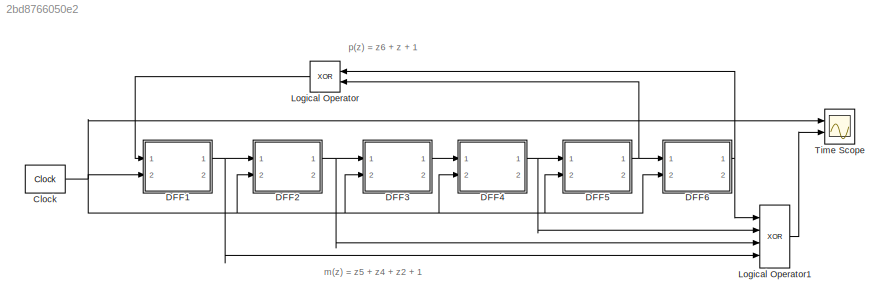
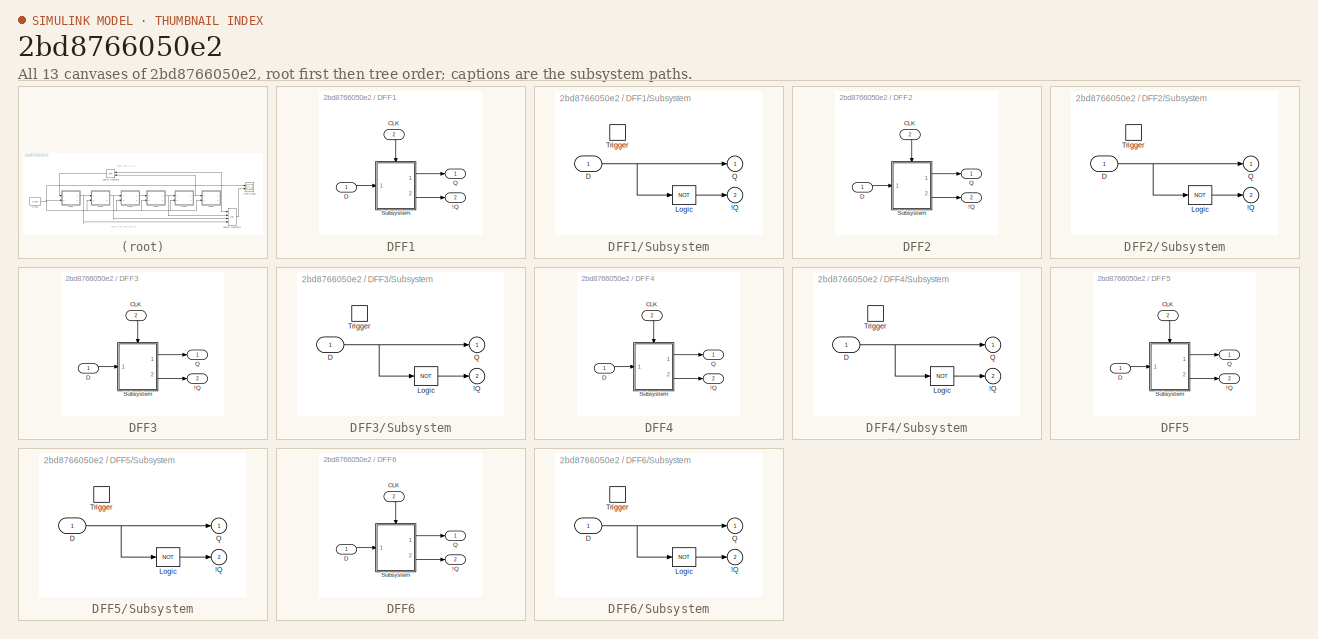
[diagram: thumbnail index - all 13 canvases of the model, root first then tree order]
MODEL slx_2bd8766050e2
KIND model
CONFIG AbsTol = auto
CONFIG EnableMultiTasking = off
CONFIG FixedStep = 1
CONFIG MaxStep = 1
CONFIG MinStep = auto
CONFIG RelTol = 1e-3
CONFIG SampleTimeConstraint = Unconstrained
CONFIG Solver = FixedStepAuto
CONFIG SolverName = FixedStepAuto
CONFIG StartTime = 0.0
CONFIG StopTime = 100
BLOCK [Reference] Clock  REF=simulink_extras/Flip Flops/Clock
  Ports = [0, 1]
  SourceBlock = simulink_extras/Flip Flops/Clock
  SourceProductBaseCode = SL
  SourceProductName = Simulink
  SourceType = Digital clock
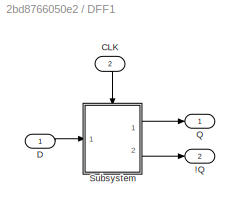
BLOCK [SubSystem] DFF1
  Ports = [2, 2]
  RequestExecContextInheritance = off
BLOCK [Outport] DFF1/!Q
  IconDisplay = Port number
  InitialOutput = 1
  Port = 2
  VectorParamsAs1DForOutWhenUnconnected = off
BLOCK [Inport] DFF1/CLK
  IconDisplay = Port number
  Port = 2
BLOCK [Inport] DFF1/D
  IconDisplay = Port number
BLOCK [Outport] DFF1/Q
  IconDisplay = Port number
  InitialOutput = 0
  VectorParamsAs1DForOutWhenUnconnected = off
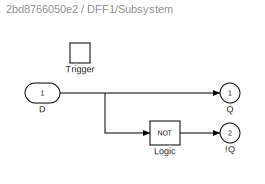
BLOCK [SubSystem] DFF1/Subsystem
  Ports = [1, 2, 0, 1]
  RequestExecContextInheritance = off
BLOCK [Outport] DFF1/Subsystem/!Q
  IconDisplay = Port number
  InitialOutput = intstate < 1
  OutputWhenDisabled = reset
  Port = 2
  VectorParamsAs1DForOutWhenUnconnected = off
BLOCK [Inport] DFF1/Subsystem/D
  IconDisplay = Port number
  LatchByDelayingOutsideSignal = on
BLOCK [Logic] DFF1/Subsystem/Logic
  Inputs = 1
  Operator = NOT
  Ports = [1, 1]
BLOCK [Outport] DFF1/Subsystem/Q
  IconDisplay = Port number
  InitialOutput = intstate > 0
  OutputWhenDisabled = reset
  VectorParamsAs1DForOutWhenUnconnected = off
BLOCK [TriggerPort] DFF1/Subsystem/Trigger
  Ports = []
  StatesWhenEnabling = reset
  VariantControl = Variant
BLOCK [SubSystem] DFF2
  Ports = [2, 2]
  RequestExecContextInheritance = off
BLOCK [Outport] DFF2/!Q
  IconDisplay = Port number
  InitialOutput = 1
  Port = 2
  VectorParamsAs1DForOutWhenUnconnected = off
BLOCK [Inport] DFF2/CLK
  IconDisplay = Port number
  Port = 2
BLOCK [Inport] DFF2/D
  IconDisplay = Port number
BLOCK [Outport] DFF2/Q
  IconDisplay = Port number
  InitialOutput = 0
  VectorParamsAs1DForOutWhenUnconnected = off
BLOCK [SubSystem] DFF2/Subsystem
  Ports = [1, 2, 0, 1]
  RequestExecContextInheritance = off
BLOCK [Outport] DFF2/Subsystem/!Q
  IconDisplay = Port number
  InitialOutput = intstate < 1
  OutputWhenDisabled = reset
  Port = 2
  VectorParamsAs1DForOutWhenUnconnected = off
BLOCK [Inport] DFF2/Subsystem/D
  IconDisplay = Port number
  LatchByDelayingOutsideSignal = on
BLOCK [Logic] DFF2/Subsystem/Logic
  Inputs = 1
  Operator = NOT
  Ports = [1, 1]
BLOCK [Outport] DFF2/Subsystem/Q
  IconDisplay = Port number
  InitialOutput = intstate > 0
  OutputWhenDisabled = reset
  VectorParamsAs1DForOutWhenUnconnected = off
BLOCK [TriggerPort] DFF2/Subsystem/Trigger
  Ports = []
  StatesWhenEnabling = reset
  VariantControl = Variant
BLOCK [SubSystem] DFF3
  Ports = [2, 2]
  RequestExecContextInheritance = off
BLOCK [Outport] DFF3/!Q
  IconDisplay = Port number
  InitialOutput = 1
  Port = 2
  VectorParamsAs1DForOutWhenUnconnected = off
BLOCK [Inport] DFF3/CLK
  IconDisplay = Port number
  Port = 2
BLOCK [Inport] DFF3/D
  IconDisplay = Port number
BLOCK [Outport] DFF3/Q
  IconDisplay = Port number
  InitialOutput = 0
  VectorParamsAs1DForOutWhenUnconnected = off
BLOCK [SubSystem] DFF3/Subsystem
  Ports = [1, 2, 0, 1]
  RequestExecContextInheritance = off
BLOCK [Outport] DFF3/Subsystem/!Q
  IconDisplay = Port number
  InitialOutput = intstate < 1
  OutputWhenDisabled = reset
  Port = 2
  VectorParamsAs1DForOutWhenUnconnected = off
BLOCK [Inport] DFF3/Subsystem/D
  IconDisplay = Port number
  LatchByDelayingOutsideSignal = on
BLOCK [Logic] DFF3/Subsystem/Logic
  Inputs = 1
  Operator = NOT
  Ports = [1, 1]
BLOCK [Outport] DFF3/Subsystem/Q
  IconDisplay = Port number
  InitialOutput = intstate > 0
  OutputWhenDisabled = reset
  VectorParamsAs1DForOutWhenUnconnected = off
BLOCK [TriggerPort] DFF3/Subsystem/Trigger
  Ports = []
  StatesWhenEnabling = reset
  VariantControl = Variant
BLOCK [SubSystem] DFF4
  Ports = [2, 2]
  RequestExecContextInheritance = off
BLOCK [Outport] DFF4/!Q
  IconDisplay = Port number
  InitialOutput = 1
  Port = 2
  VectorParamsAs1DForOutWhenUnconnected = off
BLOCK [Inport] DFF4/CLK
  IconDisplay = Port number
  Port = 2
BLOCK [Inport] DFF4/D
  IconDisplay = Port number
BLOCK [Outport] DFF4/Q
  IconDisplay = Port number
  InitialOutput = 0
  VectorParamsAs1DForOutWhenUnconnected = off
BLOCK [SubSystem] DFF4/Subsystem
  Ports = [1, 2, 0, 1]
  RequestExecContextInheritance = off
BLOCK [Outport] DFF4/Subsystem/!Q
  IconDisplay = Port number
  InitialOutput = intstate < 1
  OutputWhenDisabled = reset
  Port = 2
  VectorParamsAs1DForOutWhenUnconnected = off
BLOCK [Inport] DFF4/Subsystem/D
  IconDisplay = Port number
  LatchByDelayingOutsideSignal = on
BLOCK [Logic] DFF4/Subsystem/Logic
  Inputs = 1
  Operator = NOT
  Ports = [1, 1]
BLOCK [Outport] DFF4/Subsystem/Q
  IconDisplay = Port number
  InitialOutput = intstate > 0
  OutputWhenDisabled = reset
  VectorParamsAs1DForOutWhenUnconnected = off
BLOCK [TriggerPort] DFF4/Subsystem/Trigger
  Ports = []
  StatesWhenEnabling = reset
  VariantControl = Variant
BLOCK [SubSystem] DFF5
  Ports = [2, 2]
  RequestExecContextInheritance = off
BLOCK [Outport] DFF5/!Q
  IconDisplay = Port number
  InitialOutput = 1
  Port = 2
  VectorParamsAs1DForOutWhenUnconnected = off
BLOCK [Inport] DFF5/CLK
  IconDisplay = Port number
  Port = 2
BLOCK [Inport] DFF5/D
  IconDisplay = Port number
BLOCK [Outport] DFF5/Q
  IconDisplay = Port number
  InitialOutput = 0
  VectorParamsAs1DForOutWhenUnconnected = off
BLOCK [SubSystem] DFF5/Subsystem
  Ports = [1, 2, 0, 1]
  RequestExecContextInheritance = off
BLOCK [Outport] DFF5/Subsystem/!Q
  IconDisplay = Port number
  InitialOutput = intstate < 1
  OutputWhenDisabled = reset
  Port = 2
  VectorParamsAs1DForOutWhenUnconnected = off
BLOCK [Inport] DFF5/Subsystem/D
  IconDisplay = Port number
  LatchByDelayingOutsideSignal = on
BLOCK [Logic] DFF5/Subsystem/Logic
  Inputs = 1
  Operator = NOT
  Ports = [1, 1]
BLOCK [Outport] DFF5/Subsystem/Q
  IconDisplay = Port number
  InitialOutput = intstate > 0
  OutputWhenDisabled = reset
  VectorParamsAs1DForOutWhenUnconnected = off
BLOCK [TriggerPort] DFF5/Subsystem/Trigger
  Ports = []
  StatesWhenEnabling = reset
  VariantControl = Variant
BLOCK [SubSystem] DFF6
  Ports = [2, 2]
  RequestExecContextInheritance = off
BLOCK [Outport] DFF6/!Q
  IconDisplay = Port number
  InitialOutput = 1
  Port = 2
  VectorParamsAs1DForOutWhenUnconnected = off
BLOCK [Inport] DFF6/CLK
  IconDisplay = Port number
  Port = 2
BLOCK [Inport] DFF6/D
  IconDisplay = Port number
BLOCK [Outport] DFF6/Q
  IconDisplay = Port number
  InitialOutput = 0
  VectorParamsAs1DForOutWhenUnconnected = off
BLOCK [SubSystem] DFF6/Subsystem
  Ports = [1, 2, 0, 1]
  RequestExecContextInheritance = off
BLOCK [Outport] DFF6/Subsystem/!Q
  IconDisplay = Port number
  InitialOutput = intstate < 1
  OutputWhenDisabled = reset
  Port = 2
  VectorParamsAs1DForOutWhenUnconnected = off
BLOCK [Inport] DFF6/Subsystem/D
  IconDisplay = Port number
  LatchByDelayingOutsideSignal = on
BLOCK [Logic] DFF6/Subsystem/Logic
  Inputs = 1
  Operator = NOT
  Ports = [1, 1]
BLOCK [Outport] DFF6/Subsystem/Q
  IconDisplay = Port number
  InitialOutput = intstate > 0
  OutputWhenDisabled = reset
  VectorParamsAs1DForOutWhenUnconnected = off
BLOCK [TriggerPort] DFF6/Subsystem/Trigger
  Ports = []
  StatesWhenEnabling = reset
  VariantControl = Variant
BLOCK [Logic] Logical Operator
  AllPortsSameDT = off
  Operator = XOR
  OutDataTypeStr = boolean
  Ports = [2, 1]
BLOCK [Logic] Logical Operator1
  AllPortsSameDT = off
  Inputs = 4
  Operator = XOR
  OutDataTypeStr = boolean
  Ports = [4, 1]
BLOCK [Scope] Time Scope
  DefaultConfigurationName = spbscopes.TimeScopeBlockCfg
  Floating = off
  NumInputPorts = 2
  Ports = [2]
  ScopeSpecificationString = spbscopes.TimeScopeBlockCfg('CurrentConfiguration', extmgr.ConfigurationSet(extmgr.Configuration('Core','General UI',true),extmgr.Configuration('Core','Source UI',true),extmgr.Configuration('Sources','WiredSimulink',true),extmgr.Configuration('Visuals','Time Domain',true,'DisplayLayoutDimensions',[2 1],'DisplayPropertyDefaults',struct('YLabelReal','Amplitude','LegendVisibility','off','XGrid',true,...<+2007ch>
  UserDataPersistent = on
ANNOTATION (root): m(z) = z5 + z4 + z2 + 1
ANNOTATION (root): p(z) = z6 + z + 1
NET Clock:1 -> DFF1:2, DFF2:2, DFF3:2, DFF4:2, DFF5:2, DFF6:2, Time Scope:1
LINE DFF1/CLK:1 -> DFF1/Subsystem:trigger
LINE DFF1/D:1 -> DFF1/Subsystem:1
NET DFF1/Subsystem/D:1 -> DFF1/Subsystem/Logic:1, DFF1/Subsystem/Q:1
LINE DFF1/Subsystem/Logic:1 -> DFF1/Subsystem/!Q:1
LINE DFF1/Subsystem:1 -> DFF1/Q:1
LINE DFF1/Subsystem:2 -> DFF1/!Q:1
NET DFF1:1 -> DFF2:1, Logical Operator1:4
LINE DFF2/CLK:1 -> DFF2/Subsystem:trigger
LINE DFF2/D:1 -> DFF2/Subsystem:1
NET DFF2/Subsystem/D:1 -> DFF2/Subsystem/Logic:1, DFF2/Subsystem/Q:1
LINE DFF2/Subsystem/Logic:1 -> DFF2/Subsystem/!Q:1
LINE DFF2/Subsystem:1 -> DFF2/Q:1
LINE DFF2/Subsystem:2 -> DFF2/!Q:1
NET DFF2:1 -> DFF3:1, Logical Operator1:3
LINE DFF3/CLK:1 -> DFF3/Subsystem:trigger
LINE DFF3/D:1 -> DFF3/Subsystem:1
NET DFF3/Subsystem/D:1 -> DFF3/Subsystem/Logic:1, DFF3/Subsystem/Q:1
LINE DFF3/Subsystem/Logic:1 -> DFF3/Subsystem/!Q:1
LINE DFF3/Subsystem:1 -> DFF3/Q:1
LINE DFF3/Subsystem:2 -> DFF3/!Q:1
LINE DFF3:1 -> DFF4:1
LINE DFF4/CLK:1 -> DFF4/Subsystem:trigger
LINE DFF4/D:1 -> DFF4/Subsystem:1
NET DFF4/Subsystem/D:1 -> DFF4/Subsystem/Logic:1, DFF4/Subsystem/Q:1
LINE DFF4/Subsystem/Logic:1 -> DFF4/Subsystem/!Q:1
LINE DFF4/Subsystem:1 -> DFF4/Q:1
LINE DFF4/Subsystem:2 -> DFF4/!Q:1
NET DFF4:1 -> DFF5:1, Logical Operator1:2
LINE DFF5/CLK:1 -> DFF5/Subsystem:trigger
LINE DFF5/D:1 -> DFF5/Subsystem:1
NET DFF5/Subsystem/D:1 -> DFF5/Subsystem/Logic:1, DFF5/Subsystem/Q:1
LINE DFF5/Subsystem/Logic:1 -> DFF5/Subsystem/!Q:1
LINE DFF5/Subsystem:1 -> DFF5/Q:1
LINE DFF5/Subsystem:2 -> DFF5/!Q:1
NET DFF5:1 -> DFF6:1, Logical Operator:2
LINE DFF6/CLK:1 -> DFF6/Subsystem:trigger
LINE DFF6/D:1 -> DFF6/Subsystem:1
NET DFF6/Subsystem/D:1 -> DFF6/Subsystem/Logic:1, DFF6/Subsystem/Q:1
LINE DFF6/Subsystem/Logic:1 -> DFF6/Subsystem/!Q:1
LINE DFF6/Subsystem:1 -> DFF6/Q:1
LINE DFF6/Subsystem:2 -> DFF6/!Q:1
NET DFF6:1 -> Logical Operator1:1, Logical Operator:1
LINE Logical Operator1:1 -> Time Scope:2
LINE Logical Operator:1 -> DFF1:1
note: NET lines group one-source signal fan-out (src -> all destinations, sorted); 1:1 wires keep LINE
